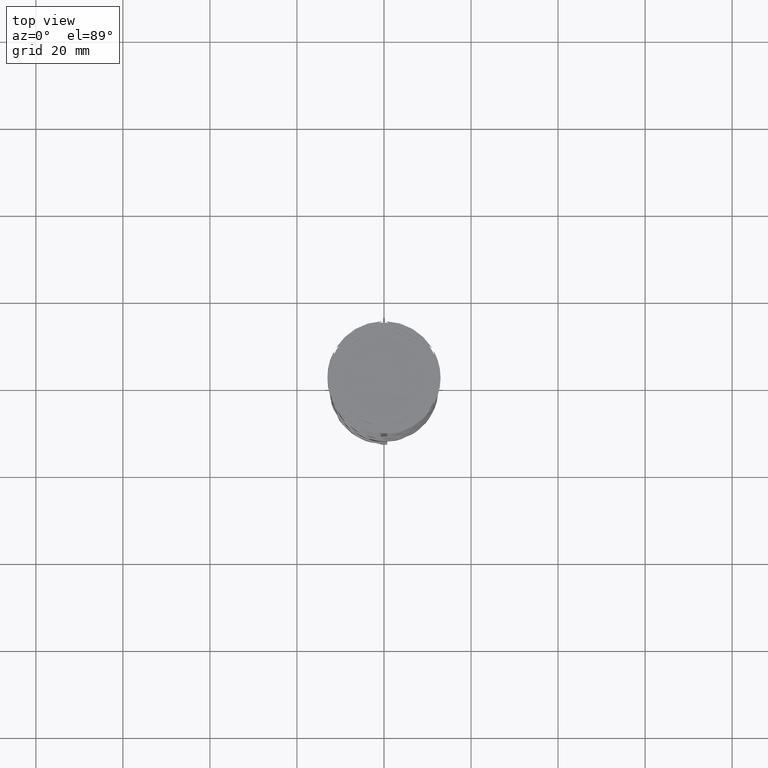
[diagram: clean part render]
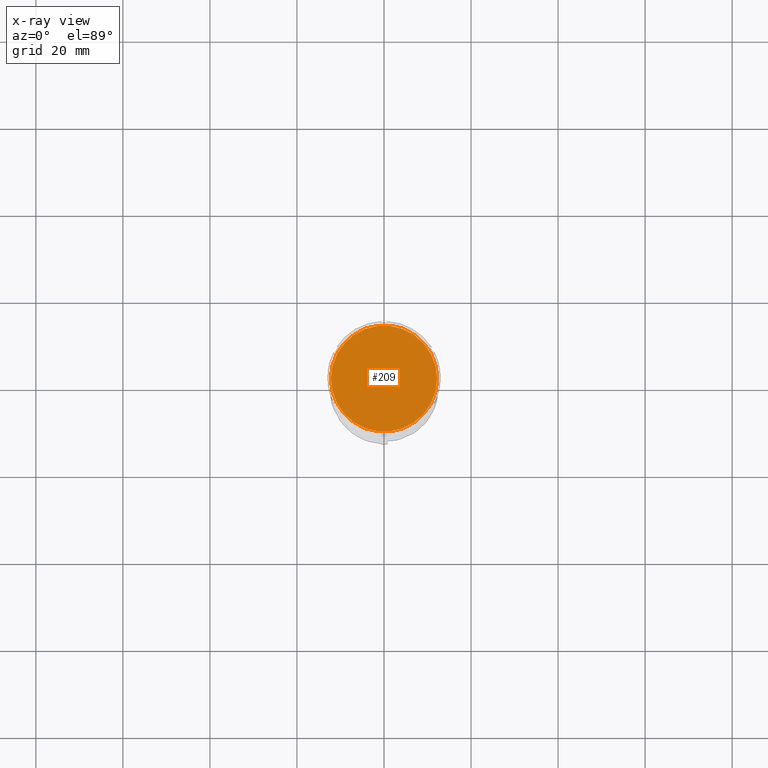
[diagram: x-ray — body ghosted, one internal face saturated and labeled with its STEP entity id]
A machine part, top view, then the same camera in x-ray: the body is ghosted and one INTERNAL B-rep face — a face not visible from any outside direction — is saturated and labeled: STEP entity #209.
In plain terms, the highlighted planar face has unit normal (0, 0, -1).
Its self-contained STEP definition (entity closure, byte-faithful):
#209 = ADVANCED_FACE ( 'NONE', ( #2274 ), #3621, .F. ) ;
#338 = VERTEX_POINT ( 'NONE', #847 ) ;
#394 = EDGE_CURVE ( 'NONE', #3118, #338, #3766, .T. ) ;
#847 = CARTESIAN_POINT ( 'NONE',  ( -12.20000000000000639, 0.000000000000000000, -12.00000000000000000 ) ) ;
#853 = DIRECTION ( 'NONE',  ( -1.000000000000000000, 0.000000000000000000, 0.000000000000000000 ) ) ;
#887 = AXIS2_PLACEMENT_3D ( 'NONE', #1715, #2988, #2969 ) ;
#1078 = EDGE_CURVE ( 'NONE', #338, #3118, #3837, .T. ) ;
#1080 = DIRECTION ( 'NONE',  ( -1.000000000000000000, 0.000000000000000000, 0.000000000000000000 ) ) ;
#1715 = CARTESIAN_POINT ( 'NONE',  ( 0.000000000000000000, 0.000000000000000000, -12.00000000000000000 ) ) ;
#1824 = AXIS2_PLACEMENT_3D ( 'NONE', #3139, #3119, #853 ) ;
#1888 = ORIENTED_EDGE ( 'NONE', *, *, #394, .T. ) ;
#2274 = FACE_OUTER_BOUND ( 'NONE', #4047, .T. ) ;
#2753 = CARTESIAN_POINT ( 'NONE',  ( 0.000000000000000000, 0.000000000000000000, -12.00000000000000000 ) ) ;
#2830 = AXIS2_PLACEMENT_3D ( 'NONE', #2753, #3644, #1080 ) ;
#2969 = DIRECTION ( 'NONE',  ( -1.000000000000000000, 0.000000000000000000, -0.000000000000000000 ) ) ;
#2988 = DIRECTION ( 'NONE',  ( 0.000000000000000000, 0.000000000000000000, -1.000000000000000000 ) ) ;
#3118 = VERTEX_POINT ( 'NONE', #3878 ) ;
#3119 = DIRECTION ( 'NONE',  ( -0.000000000000000000, -0.000000000000000000, 1.000000000000000000 ) ) ;
#3139 = CARTESIAN_POINT ( 'NONE',  ( 0.000000000000000000, 0.000000000000000000, -12.00000000000000000 ) ) ;
#3422 = ORIENTED_EDGE ( 'NONE', *, *, #1078, .T. ) ;
#3621 = PLANE ( 'NONE',  #887 ) ;
#3644 = DIRECTION ( 'NONE',  ( -0.000000000000000000, -0.000000000000000000, 1.000000000000000000 ) ) ;
#3766 = CIRCLE ( 'NONE', #2830, 12.20000000000000639 ) ;
#3837 = CIRCLE ( 'NONE', #1824, 12.20000000000000639 ) ;
#3878 = CARTESIAN_POINT ( 'NONE',  ( 12.20000000000000639, 1.512438796946981880E-15, -12.00000000000000000 ) ) ;
#4047 = EDGE_LOOP ( 'NONE', ( #3422, #1888 ) ) ;